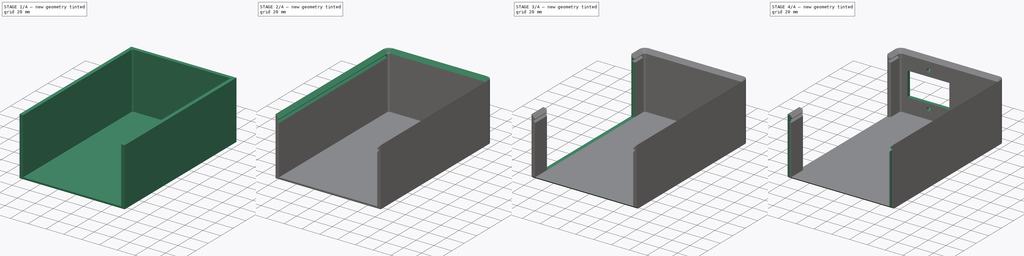
[diagram: build sequence overview — one tinted view per stage of 4, left to right]
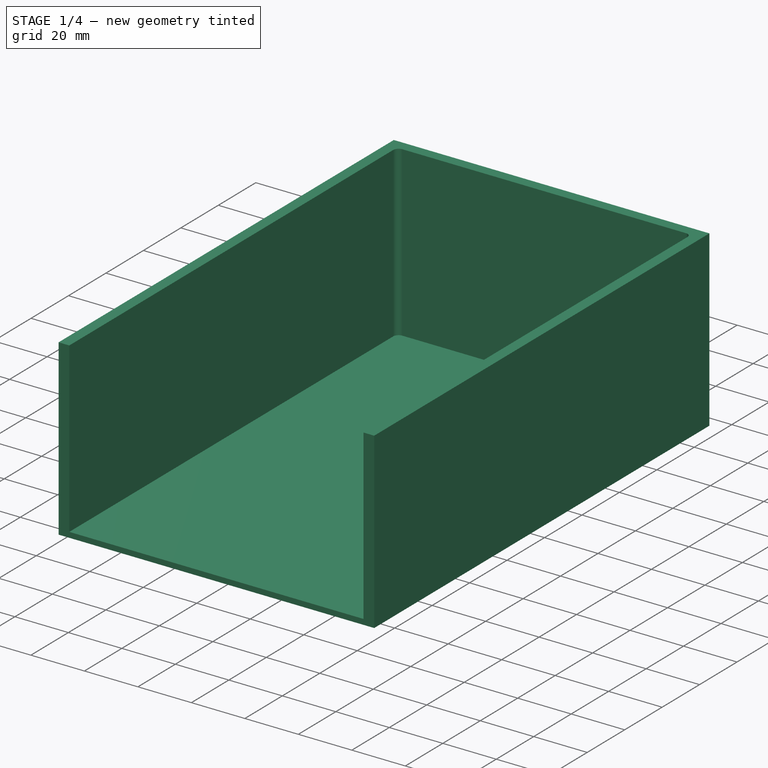
[diagram: stage 1 of 4 — iso view after this stage's code; geometry added in this stage tinted green]
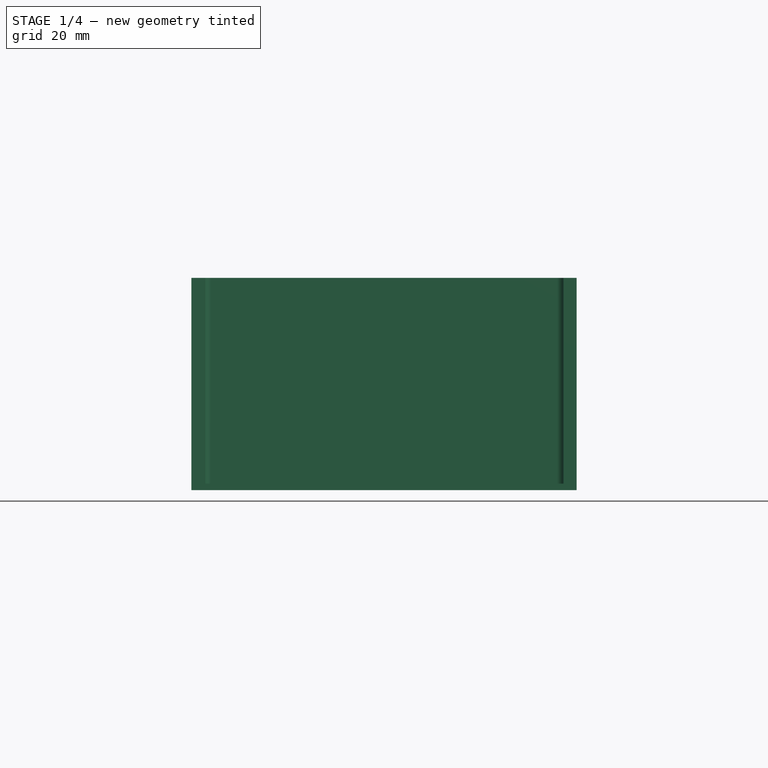
[diagram: stage 1 of 4 — front view after this stage's code; geometry added in this stage tinted green]
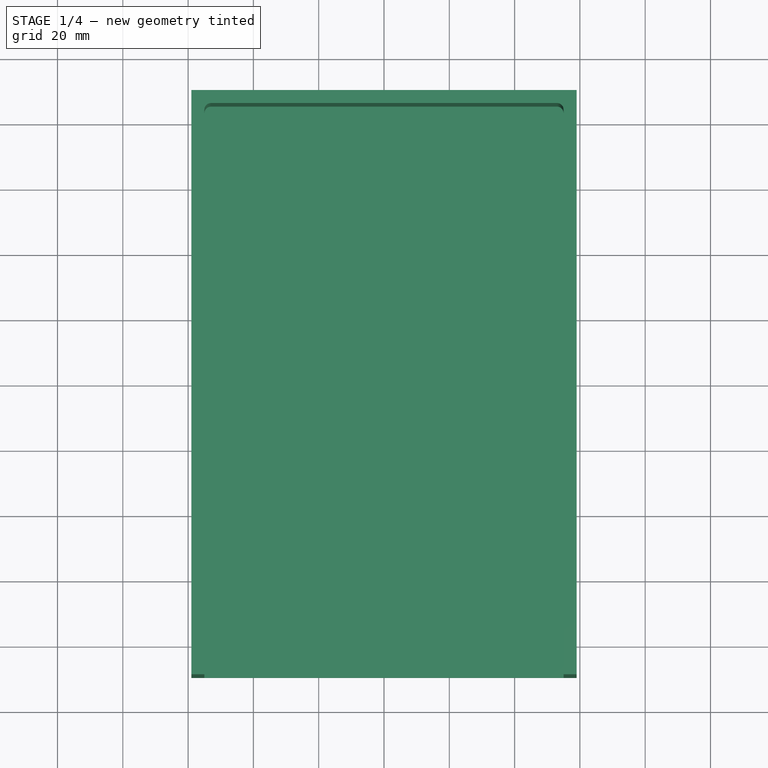
[diagram: stage 1 of 4 — top view after this stage's code; geometry added in this stage tinted green]
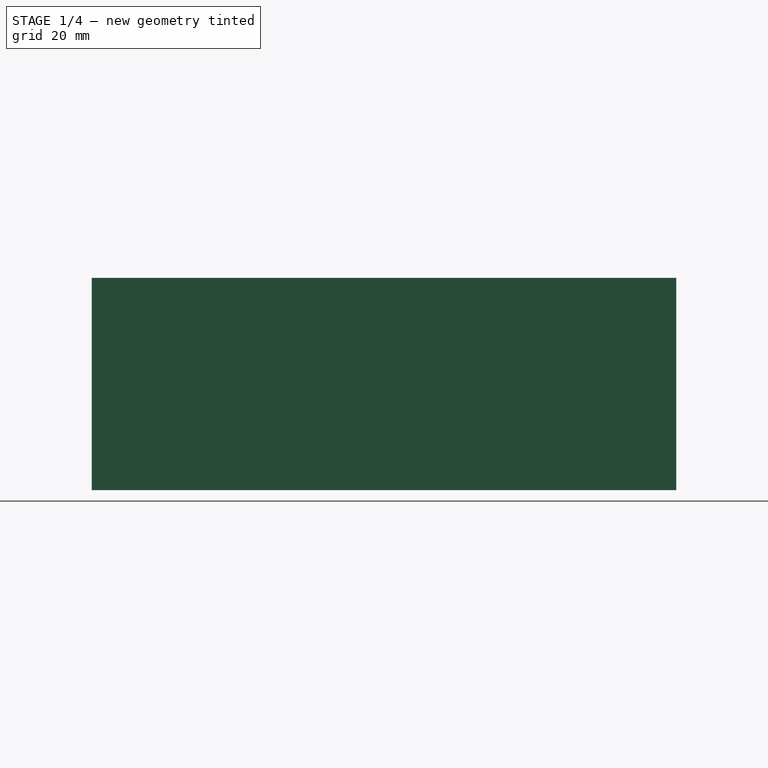
[diagram: stage 1 of 4 — right view after this stage's code; geometry added in this stage tinted green]
FCSTD DOCUMENT  (FreeCAD 0.18R16110 (Git))
Label: CasePart1L
License: All rights reserved
LicenseURL: http://en.wikipedia.org/wiki/All_rights_reserved
objects: Sketcher::SketchObject×7, PartDesign::Pocket×6, PartDesign::Fillet×2, PartDesign::Chamfer×2, PartDesign::Pad×1, PartDesign::Plane×1, PartDesign::Body×1, App::Part×1
note: 27 computed .brp shape members not serialized (recipe doc carries the construction recipe); baked Part::Feature solids carry a one-line shape summary decoded from their .brp

FEATURE [Sketcher::SketchObject] Sketch
  MapMode = 5
  Support = -> [XY_Plane001]
  sketch-geometry (4):
    g0: LineSegment StartX=-59 StartY=89.5 StartZ=0 EndX=59 EndY=89.5 EndZ=0
    g1: LineSegment StartX=59 StartY=89.5 StartZ=0 EndX=59 EndY=-89.5 EndZ=0
    g2: LineSegment StartX=59 StartY=-89.5 StartZ=0 EndX=-59 EndY=-89.5 EndZ=0
    g3: LineSegment StartX=-59 StartY=-89.5 StartZ=0 EndX=-59 EndY=89.5 EndZ=0
  constraints (10):
    c: Coincident(g0,g1)
    c: Coincident(g1,g2)
    c: Coincident(g2,g3)
    c: Coincident(g3,g0)
    c: Horizontal(g2)
    c: Vertical(g1)
    c: Symmetric(g2,g0,g-1)
    c: Symmetric(g0,g0,g-2)
    c: Distance(g0) = 118
    c: Distance(g3) = 179
FEATURE [PartDesign::Pad] Pad
  Length = 63
  Length2 = 2
  Profile = -> Sketch
  Type = 4
FEATURE [Sketcher::SketchObject] Sketch001
  ExternalGeometry = -> [Sketch]
  MapMode = 5
  Support = -> [XY_Plane001]
  sketch-geometry (4):
    g0: LineSegment StartX=-55 StartY=85.5 StartZ=0 EndX=55 EndY=85.5 EndZ=0
    g1: LineSegment StartX=55 StartY=85.5 StartZ=0 EndX=55 EndY=-89.5 EndZ=0
    g2: LineSegment StartX=55 StartY=-89.5 StartZ=0 EndX=-55 EndY=-89.5 EndZ=0
    g3: LineSegment StartX=-55 StartY=-89.5 StartZ=0 EndX=-55 EndY=85.5 EndZ=0
  constraints (11):
    c: Coincident(g0,g1)
    c: Coincident(g1,g2)
    c: Coincident(g2,g3)
    c: Coincident(g3,g0)
    c: Horizontal(g2)
    c: Vertical(g1)
    c: Vertical(g3)
    c: Symmetric(g0,g0,g-2)
    c: Distance(g0) = 110
    c: Distance(g0,g-3) = 4
    c: PointOnObject(g1,g-4)
FEATURE [PartDesign::Pocket] Pocket
  BaseFeature = -> Pad
  Length = 5
  Length2 = 100
  Profile = -> Sketch001
  Reversed = true
  Type = 1
FEATURE [Sketcher::SketchObject] Sketch003
  MapMode = 5
  Placement = pos=(0,0,0) rot=(1,0,0;1.5708rad)
  Support = -> [XZ_Plane001]
  sketch-geometry (6):
    g0: LineSegment StartX=-55 StartY=59 StartZ=0 EndX=-57 EndY=57 EndZ=0
    g1: LineSegment StartX=-57 StartY=57 StartZ=0 EndX=-55 EndY=55 EndZ=0
    g2: LineSegment StartX=55 StartY=59 StartZ=0 EndX=57 EndY=57 EndZ=0
    g3: LineSegment StartX=57 StartY=57 StartZ=0 EndX=55 EndY=55 EndZ=0
    g4: LineSegment StartX=-55 StartY=59 StartZ=0 EndX=55 EndY=59 EndZ=0
    g5: LineSegment StartX=-55 StartY=55 StartZ=0 EndX=55 EndY=55 EndZ=0
  constraints (15):
    c: Coincident(g1,g0)
    c: Coincident(g3,g2)
    c: Coincident(g4,g2)
    c: Coincident(g5,g1)
    c: Coincident(g5,g3)
    c: Symmetric(g2,g4,g-2)
    c: Coincident(g0,g4)
    c: Symmetric(g1,g3,g-2)
    c: Equal(g4,g5)
    c: Perpendicular(g0,g1)
    c: Equal(g1,g0)
    c: DistanceY(g-1,g1) = 55
    c: Symmetric(g2,g0,g-2)
    c: Distance(g0,g2) = 114
    c: Distance(g5) = 110
FEATURE [Sketcher::SketchObject] Sketch004
  MapMode = 5
  Support = -> [XY_Plane001]
  sketch-geometry (6):
    g0: LineSegment StartX=-59 StartY=-70.5 StartZ=0 EndX=-59 EndY=70.5 EndZ=0
    g1: LineSegment StartX=-59 StartY=70.5 StartZ=0 EndX=-57 EndY=68.5 EndZ=0
    g2: LineSegment StartX=-57 StartY=68.5 StartZ=0 EndX=-55 EndY=70.5 EndZ=0
    g3: LineSegment StartX=-55 StartY=70.5 StartZ=0 EndX=-55 EndY=-70.5 EndZ=0
    g4: LineSegment StartX=-59 StartY=-70.5 StartZ=0 EndX=-57 EndY=-68.5 EndZ=0
    g5: LineSegment StartX=-57 StartY=-68.5 StartZ=0 EndX=-55 EndY=-70.5 EndZ=0
  constraints (16):
    c: Symmetric(g0,g0,g-1)
    c: Distance(g0) = 141
    c: DistanceX(g-2,g0) = -59
    c: Coincident(g1,g0)
    c: Coincident(g2,g1)
    c: Coincident(g3,g2)
    c: Coincident(g4,g0)
    c: Coincident(g5,g4)
    c: Coincident(g5,g3)
    c: Symmetric(g3,g2,g-1)
    c: Equal(g3,g0)
    c: Perpendicular(g2,g1)
    c: Equal(g1,g2)
    c: Equal(g2,g4)
    c: Equal(g4,g5)
    c: Distance(g2,g0) = 4
FEATURE [PartDesign::Fillet] Fillet
  Base = -> Pocket [Edge23,Edge21]
  BaseFeature = -> Pocket
  Radius = 2
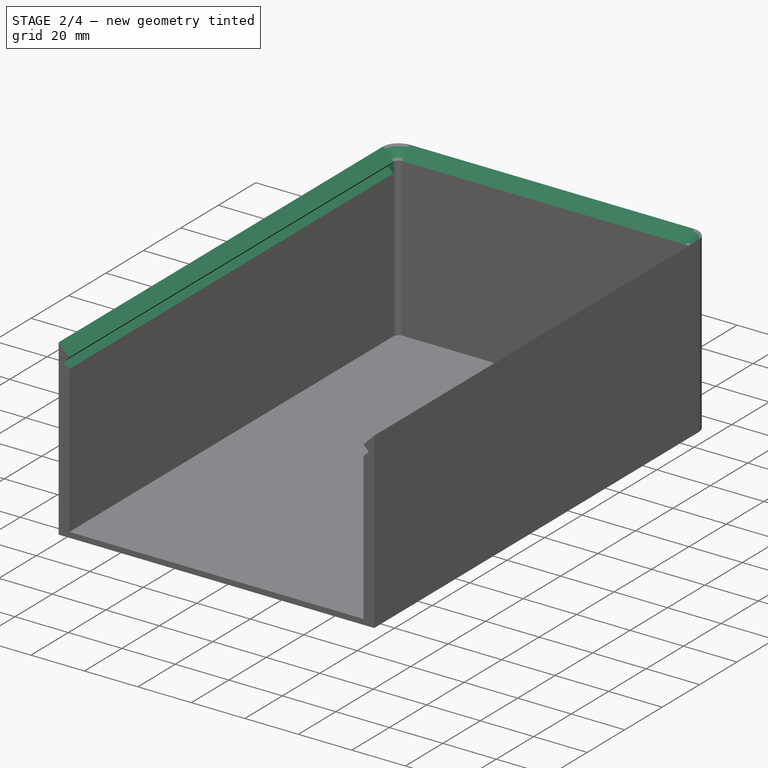
[diagram: stage 2 of 4 — iso view after this stage's code; geometry added in this stage tinted green]
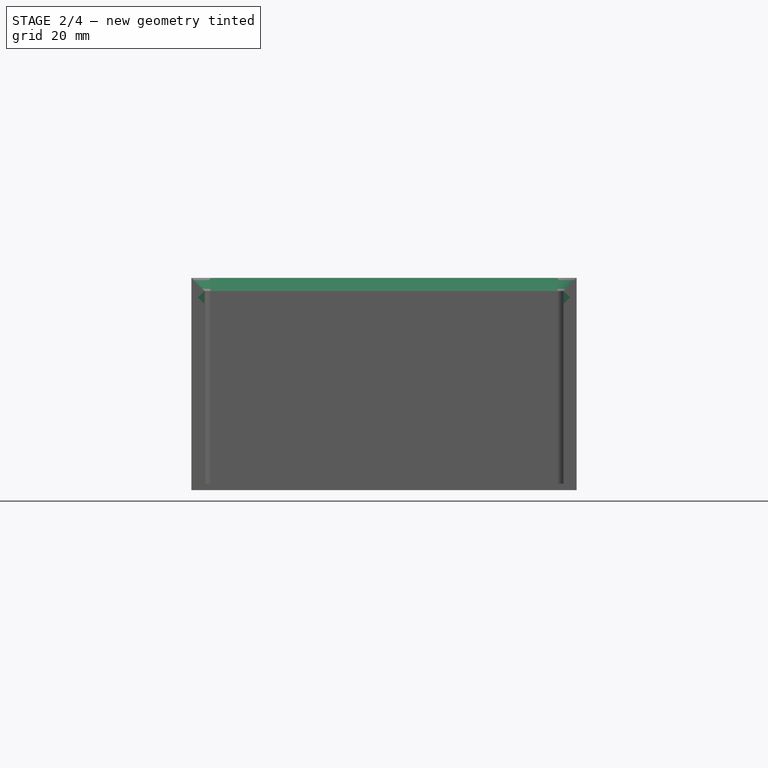
[diagram: stage 2 of 4 — front view after this stage's code; geometry added in this stage tinted green]
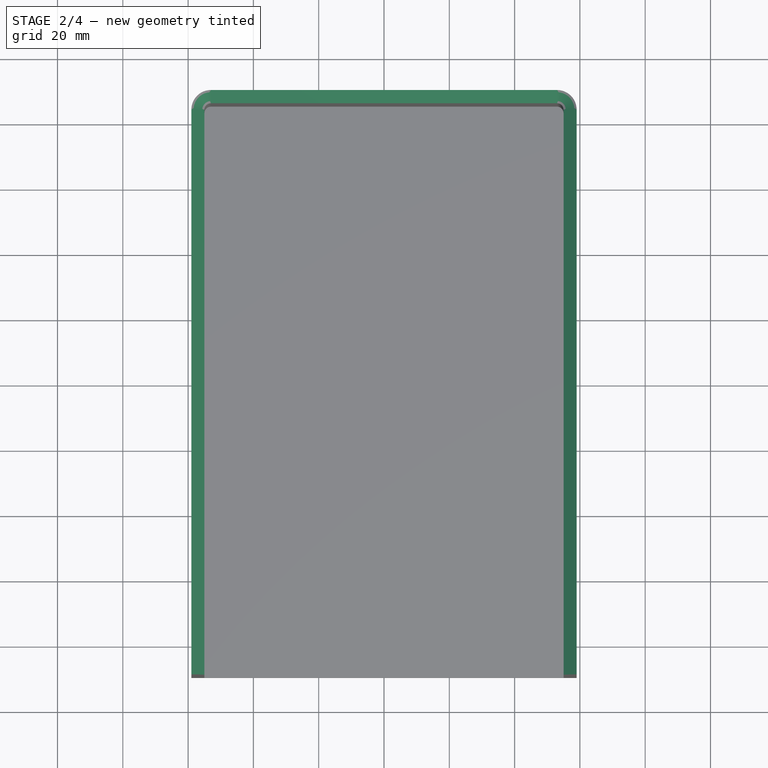
[diagram: stage 2 of 4 — top view after this stage's code; geometry added in this stage tinted green]
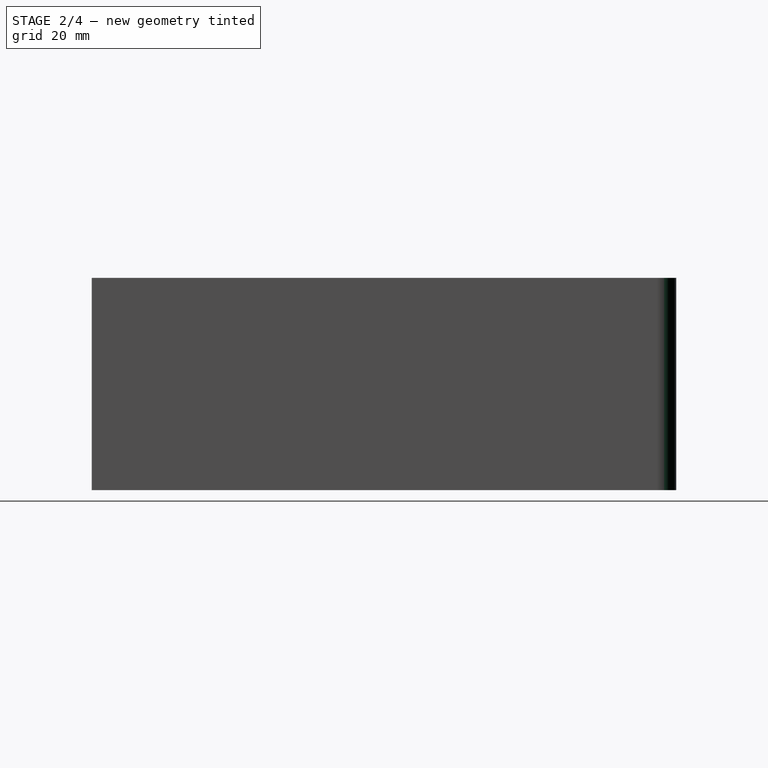
[diagram: stage 2 of 4 — right view after this stage's code; geometry added in this stage tinted green]
FEATURE [PartDesign::Fillet] Fillet001
  Base = -> Fillet [Edge23,Edge27]
  BaseFeature = -> Fillet
  Radius = 6
FEATURE [PartDesign::Chamfer] Chamfer
  Base = -> Fillet001 [Edge5]
  BaseFeature = -> Fillet001
  Size = 3.999
FEATURE [PartDesign::Pocket] Pocket001
  BaseFeature = -> Chamfer
  Length = 83.5
  Length2 = 1000
  Profile = -> Sketch003
  Type = 4
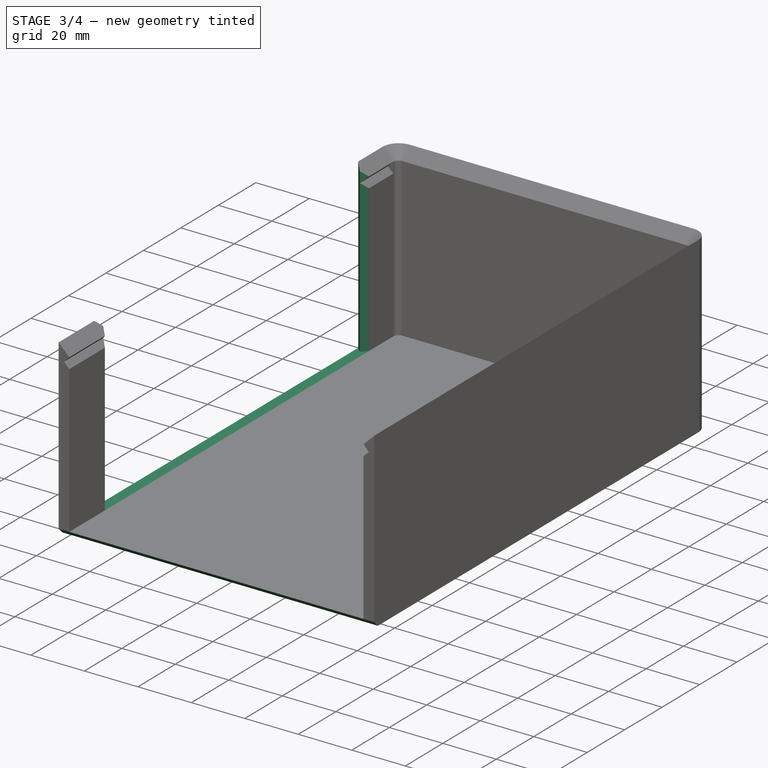
[diagram: stage 3 of 4 — iso view after this stage's code; geometry added in this stage tinted green]
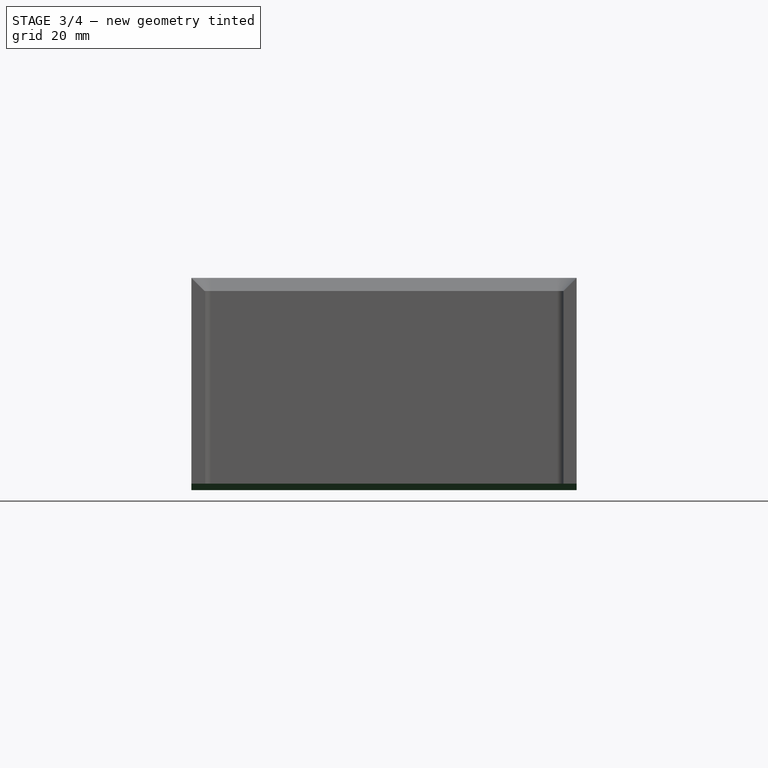
[diagram: stage 3 of 4 — front view after this stage's code; geometry added in this stage tinted green]
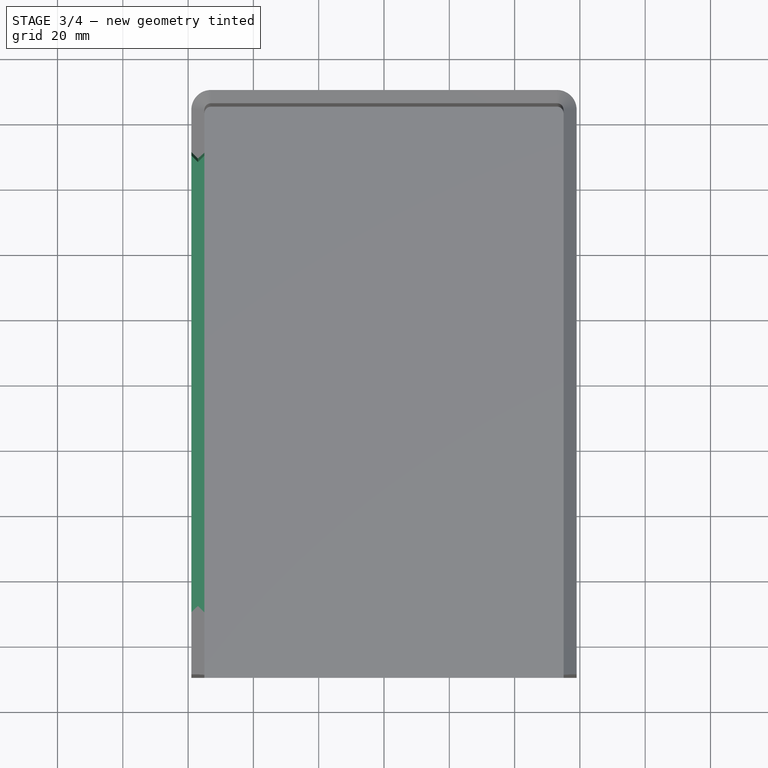
[diagram: stage 3 of 4 — top view after this stage's code; geometry added in this stage tinted green]
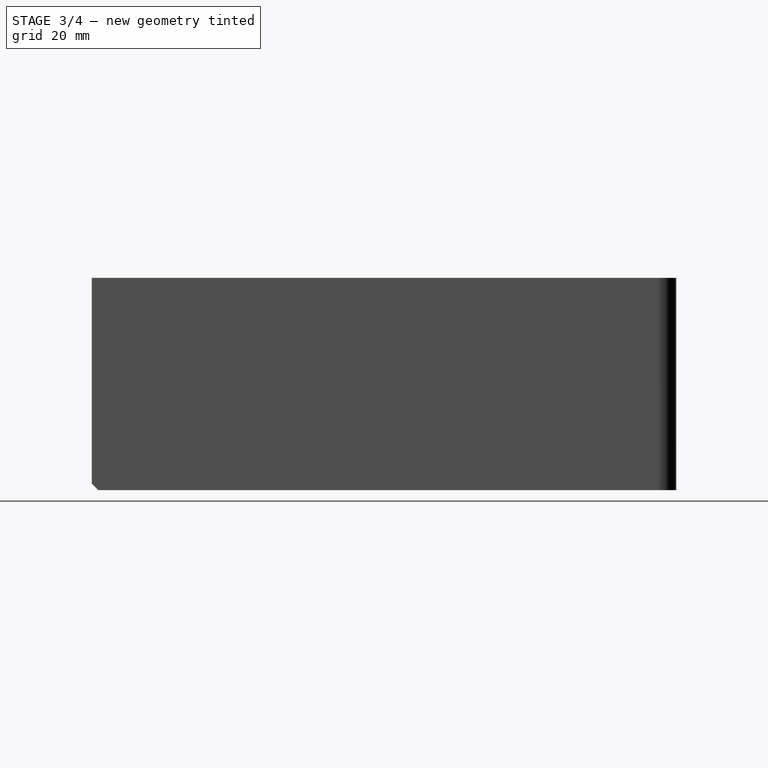
[diagram: stage 3 of 4 — right view after this stage's code; geometry added in this stage tinted green]
FEATURE [PartDesign::Pocket] Pocket002
  BaseFeature = -> Pocket001
  Length = 5
  Length2 = 100
  Profile = -> Sketch004
  Reversed = true
  Type = 1
FEATURE [PartDesign::Chamfer] Chamfer001
  Base = -> Pocket002 [Edge31]
  BaseFeature = -> Pocket002
  Size = 1.999
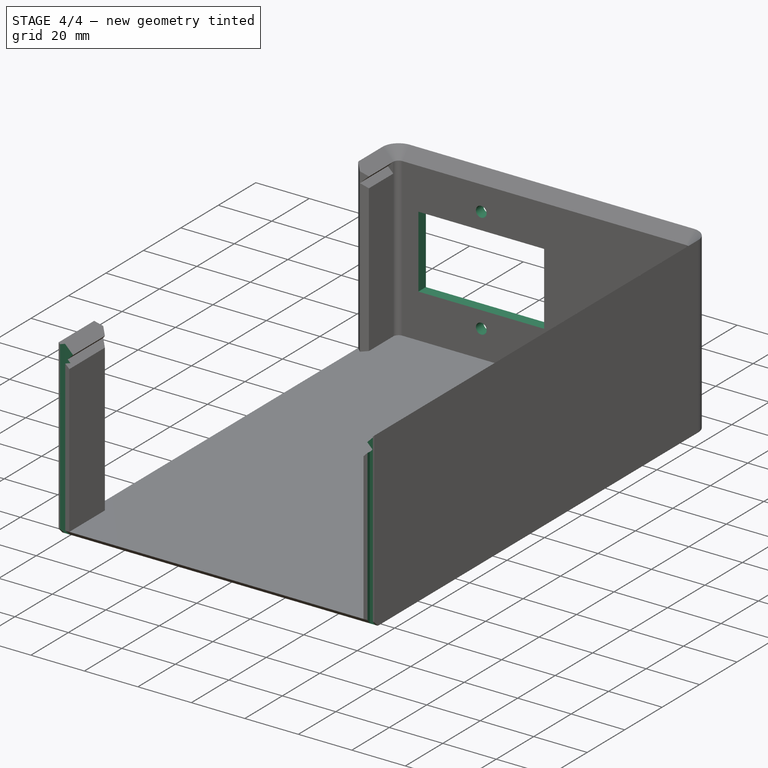
[diagram: stage 4 of 4 — iso view after this stage's code; geometry added in this stage tinted green]
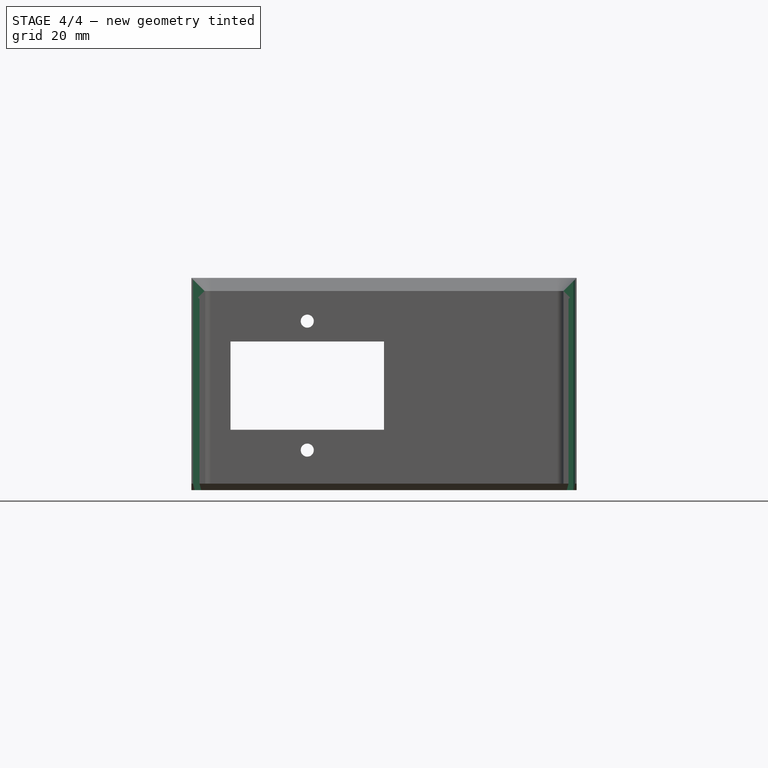
[diagram: stage 4 of 4 — front view after this stage's code; geometry added in this stage tinted green]
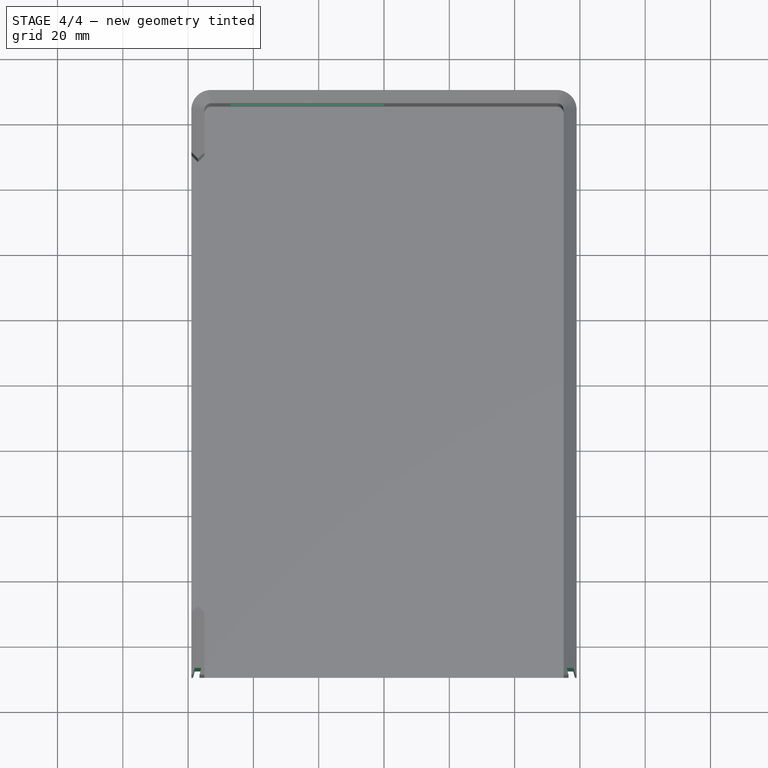
[diagram: stage 4 of 4 — top view after this stage's code; geometry added in this stage tinted green]
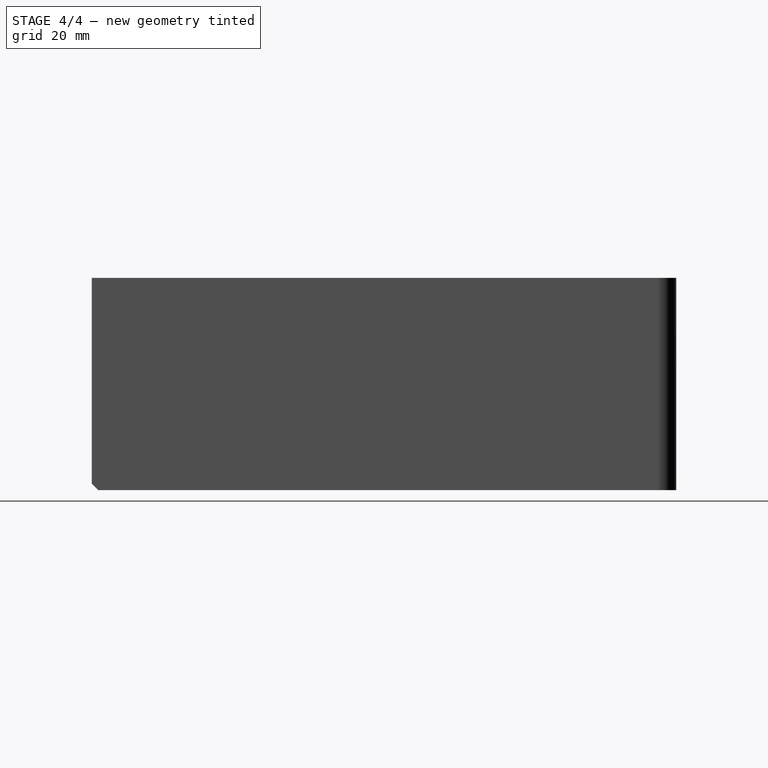
[diagram: stage 4 of 4 — right view after this stage's code; geometry added in this stage tinted green]
FEATURE [Sketcher::SketchObject] Sketch005
  MapMode = 5
  Support = -> [XY_Plane001]
  sketch-geometry (8):
    g0: LineSegment StartX=-58.5 StartY=-89.5 StartZ=0 EndX=-58 EndY=-87.5 EndZ=0
    g1: LineSegment StartX=-58 StartY=-87.5 StartZ=0 EndX=-56 EndY=-87.5 EndZ=0
    g2: LineSegment StartX=-56 StartY=-87.5 StartZ=0 EndX=-56.5 EndY=-89.5 EndZ=0
    g3: LineSegment StartX=-56.5 StartY=-89.5 StartZ=0 EndX=-58.5 EndY=-89.5 EndZ=0
    g4: LineSegment StartX=58.5 StartY=-89.5 StartZ=0 EndX=56.5 EndY=-89.5 EndZ=0
    g5: LineSegment StartX=58.5 StartY=-89.5 StartZ=0 EndX=58 EndY=-87.5 EndZ=0
    g6: LineSegment StartX=58 StartY=-87.5 StartZ=0 EndX=56 EndY=-87.5 EndZ=0
    g7: LineSegment StartX=56 StartY=-87.5 StartZ=0 EndX=56.5 EndY=-89.5 EndZ=0
  constraints (23):
    c: Coincident(g1,g0)
    c: Horizontal(g1)
    c: Coincident(g2,g1)
    c: Coincident(g3,g2)
    c: Coincident(g3,g0)
    c: Horizontal(g3)
    c: Horizontal(g4)
    c: Coincident(g5,g4)
    c: Coincident(g6,g5)
    c: Coincident(g7,g6)
    c: Coincident(g7,g4)
    c: Symmetric(g1,g6,g-2)
    c: Symmetric(g4,g2,g-2)
    c: Equal(g2,g7)
    c: Equal(g3,g4)
    c: Equal(g4,g6)
    c: Equal(g6,g1)
    c: Equal(g0,g5)
    c: DistanceX(g2,g1) = 0.5
    c: Distance(g3) = 2
    c: Distance(g4,g0) = 117
    c: DistanceY(g-1,g0) = -89.5
    c: DistanceY(g0,g0) = 2
FEATURE [PartDesign::Pocket] Pocket003
  BaseFeature = -> Chamfer001
  Length = 5
  Length2 = 100
  Midplane = true
  Profile = -> Sketch005
  Type = 1
FEATURE [PartDesign::Plane] DatumPlane
  AttachmentOffset = pos=(0,0,57) rot=(0,0,1;0rad)
  Length = 147.067
  MapMode = 5
  Placement = pos=(0,0,57) rot=(0,0,1;0rad)
  ResizeMode = 0
  Support = -> [XY_Plane001]
  Width = 208.067
FEATURE [Sketcher::SketchObject] Sketch006
  MapMode = 5
  Placement = pos=(0,0,57) rot=(0,0,1;0rad)
  Support = -> [DatumPlane]
  sketch-geometry (8):
    g0: LineSegment StartX=-55 StartY=-89.5 StartZ=0 EndX=-57 EndY=-89.5 EndZ=0
    g1: LineSegment StartX=-57 StartY=-89.5 StartZ=0 EndX=-57 EndY=-87.5 EndZ=0
    g2: LineSegment StartX=-57 StartY=-87.5 StartZ=0 EndX=-55 EndY=-87.5 EndZ=0
    g3: LineSegment StartX=-55 StartY=-87.5 StartZ=0 EndX=-55 EndY=-89.5 EndZ=0
    g4: LineSegment StartX=55 StartY=-87.5 StartZ=0 EndX=57 EndY=-87.5 EndZ=0
    g5: LineSegment StartX=57 StartY=-87.5 StartZ=0 EndX=57 EndY=-89.5 EndZ=0
    g6: LineSegment StartX=57 StartY=-89.5 StartZ=0 EndX=55 EndY=-89.5 EndZ=0
    g7: LineSegment StartX=55 StartY=-89.5 StartZ=0 EndX=55 EndY=-87.5 EndZ=0
  constraints (23):
    c: Coincident(g0,g1)
    c: Coincident(g1,g2)
    c: Coincident(g2,g3)
    c: Coincident(g3,g0)
    c: Horizontal(g0)
    c: Horizontal(g2)
    c: Vertical(g1)
    c: Vertical(g3)
    c: DistanceY(g-1,g2) = -87.5
    c: Distance(g3) = 2
    c: Coincident(g4,g5)
    c: Coincident(g5,g6)
    c: Coincident(g6,g7)
    c: Coincident(g7,g4)
    c: Horizontal(g4)
    c: Horizontal(g6)
    c: Vertical(g5)
    c: Vertical(g7)
    c: Symmetric(g2,g4,g-2)
    c: Distance(g2,g4) = 110
    c: Distance(g2) = 2
    c: Equal(g2,g4)
    c: Equal(g5,g1)
FEATURE [PartDesign::Pocket] Pocket004
  BaseFeature = -> Pocket003
  Length = 5
  Length2 = 100
  Profile = -> Sketch006
  Reversed = true
  Type = 0
FEATURE [Sketcher::SketchObject] Sketch007
  MapMode = 5
  Placement = pos=(0,0,0) rot=(1,0,0;1.5708rad)
  Support = -> [XZ_Plane001]
  sketch-geometry (9):
    g0: LineSegment StartX=0 StartY=43.5 StartZ=0 EndX=-47 EndY=43.5 EndZ=0
    g1: LineSegment StartX=-47 StartY=43.5 StartZ=0 EndX=-47 EndY=30 EndZ=0
    g2: LineSegment StartX=0 StartY=30 StartZ=0 EndX=0 EndY=43.5 EndZ=0
    g3: LineSegment StartX=0 StartY=30 StartZ=0 EndX=0 EndY=16.5 EndZ=0
    g4: LineSegment StartX=0 StartY=16.5 StartZ=0 EndX=-47 EndY=16.5 EndZ=0
    g5: LineSegment StartX=-47 StartY=16.5 StartZ=0 EndX=-47 EndY=30 EndZ=0
    g6: Circle CenterX=-23.5 CenterY=10.25 CenterZ=0 NormalX=0 NormalY=0 NormalZ=1 AngleXU=0 Radius=2
    g7: Circle CenterX=-23.5 CenterY=49.75 CenterZ=0 NormalX=0 NormalY=0 NormalZ=1 AngleXU=0 Radius=2
    g8: LineSegment [constr] StartX=-47 StartY=30 StartZ=0 EndX=0 EndY=30 EndZ=0
  constraints (25):
    c: Coincident(g0,g1)
    c: Coincident(g2,g0)
    c: Horizontal(g0)
    c: Vertical(g1)
    c: Vertical(g2)
    c: Coincident(g3,g4)
    c: Coincident(g4,g5)
    c: Horizontal(g4)
    c: Vertical(g3)
    c: Vertical(g5)
    c: Coincident(g3,g2)
    c: Equal(g2,g3)
    c: Coincident(g1,g5)
    c: Equal(g1,g5)
    c: Distance(g0,g3) = 27
    c: PointOnObject(g3,g-2)
    c: Distance(g0) = 47
    c: DistanceY(g-1,g2) = 30
    c: Coincident(g8,g1)
    c: Coincident(g8,g2)
    c: Symmetric(g7,g6,g8)
    c: Equal(g7,g6)
    c: Radius(g7) = 2
    c: Distance(g7,g6) = 39.5
    c: DistanceX(g-2,g7) = -23.5
FEATURE [PartDesign::Pocket] Pocket005
  BaseFeature = -> Pocket004
  Length = 5
  Length2 = 100
  Profile = -> Sketch007
  Type = 1
FEATURE [PartDesign::Body] Body  label="CaseBody"
  Group = -> [Sketch,Pad,Sketch001,Pocket,Sketch003,Sketch004,Fillet,Fillet001,Chamfer,Pocket001,Pocket002,Chamfer001,Sketch005,Pocket003,DatumPlane,Sketch006,Pocket004,Sketch007,Pocket005]
  Origin = -> Origin001
  Tip = -> Pocket005
FEATURE [App::Part] Part  label="CasePart1L"
  Group = -> [Body]
  License = CC BY 3.0
  LicenseURL = http://creativecommons.org/licenses/by/3.0/
  Origin = -> Origin
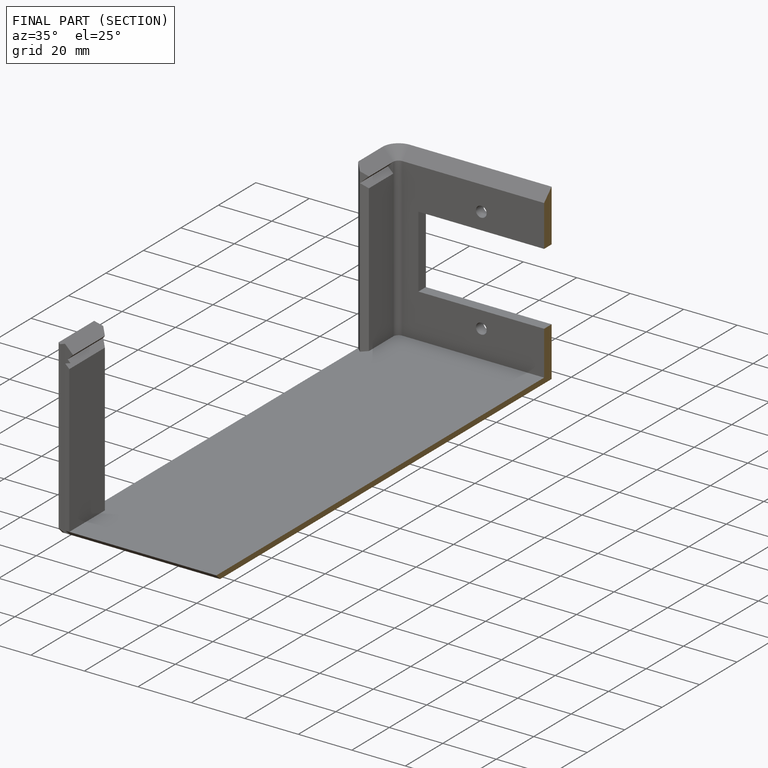
[diagram: finished part — half-section view (interior)]
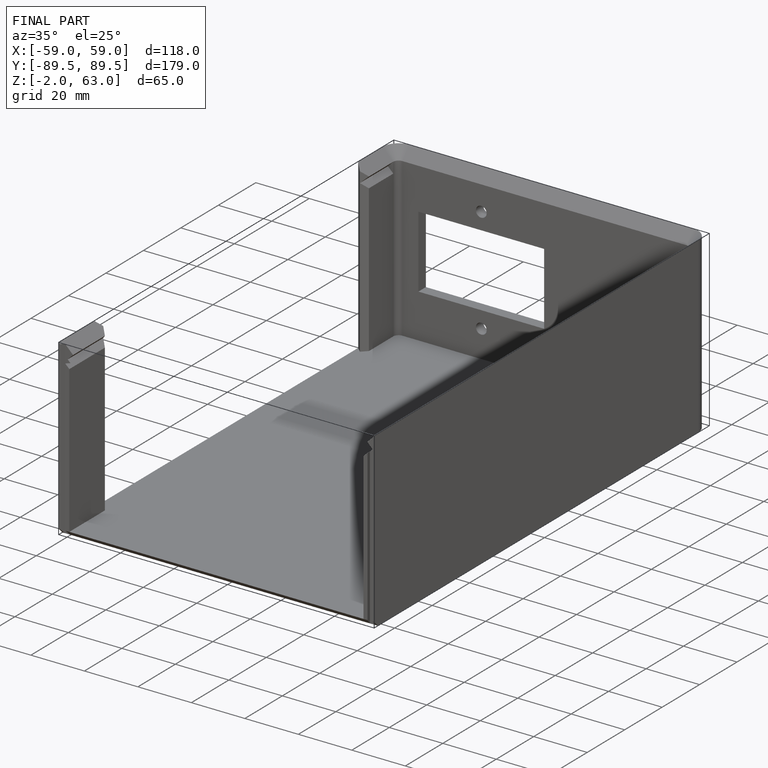
[diagram: finished part — iso view with bounding-box wireframe]
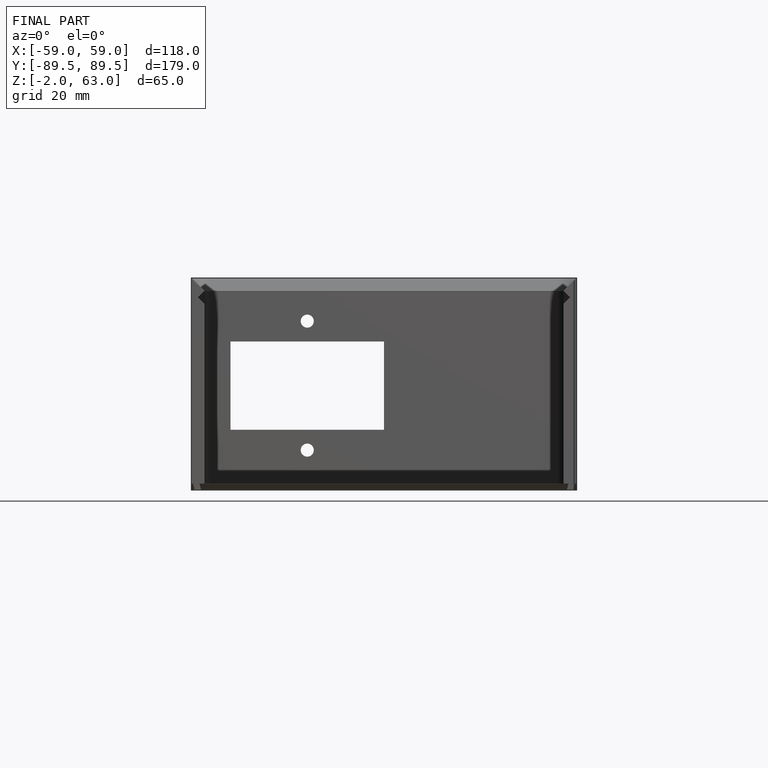
[diagram: finished part — front view with bounding-box wireframe]
